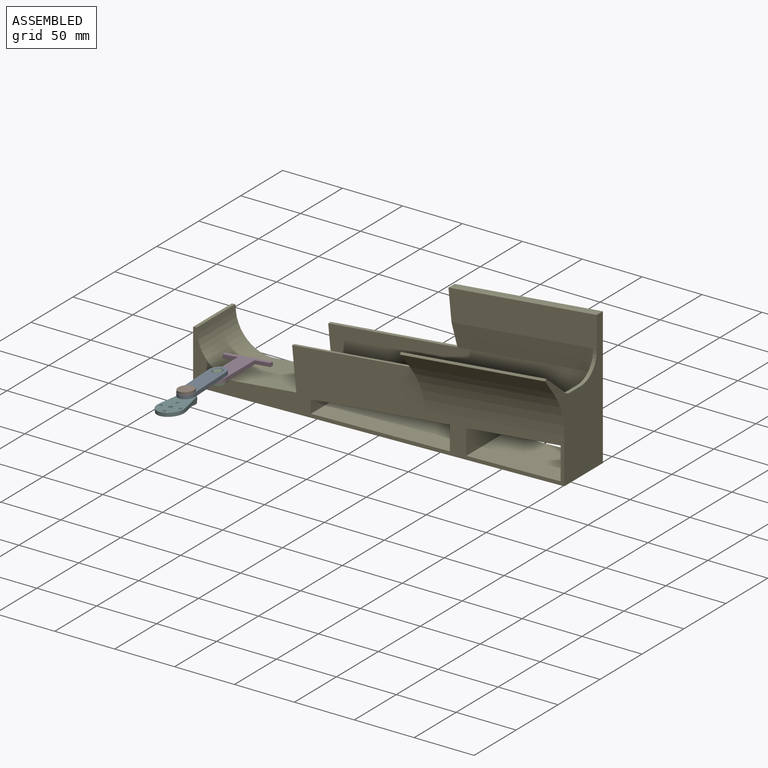
[diagram: assembled view]
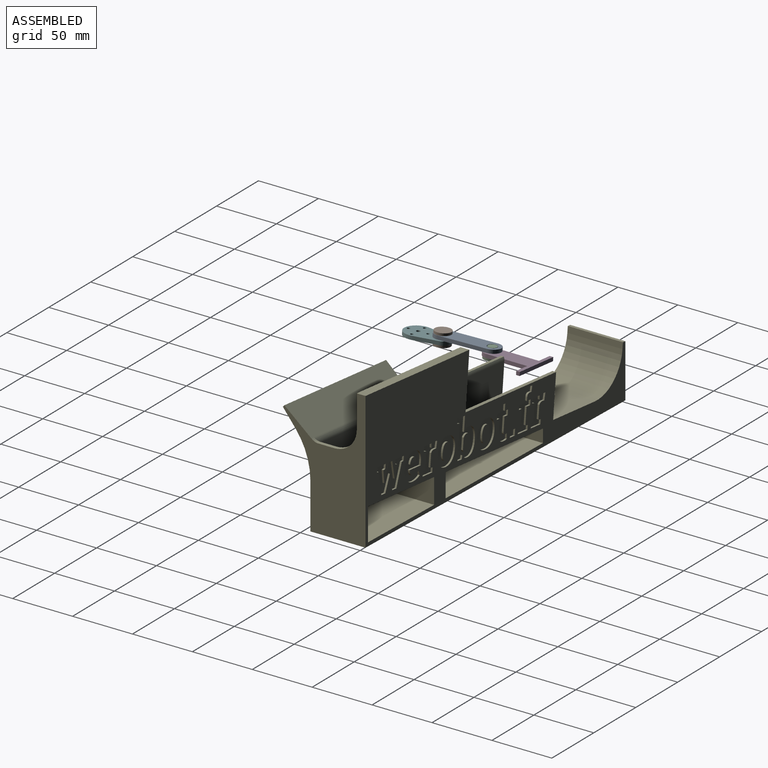
[diagram: assembled view, second angle]
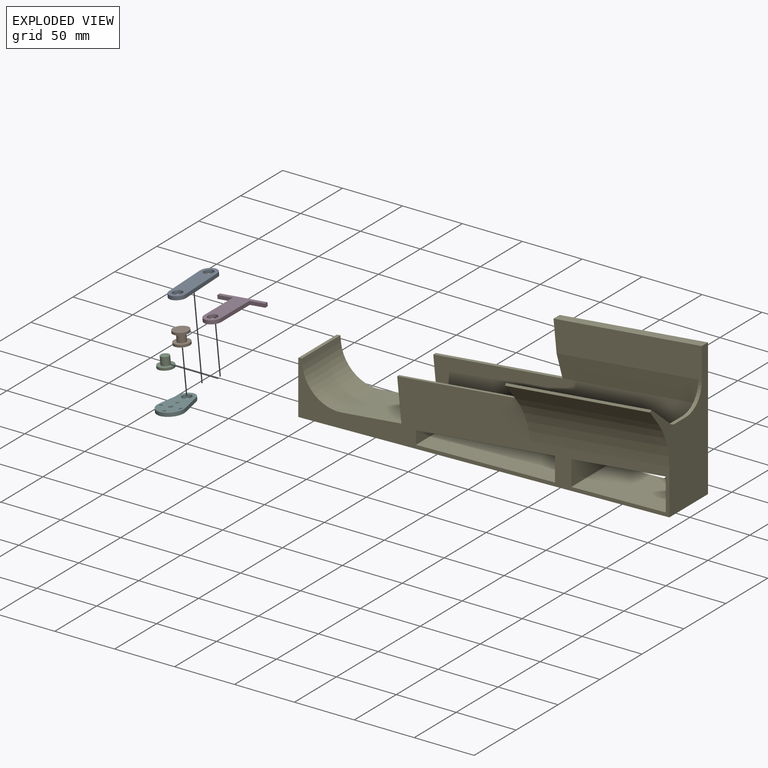
[diagram: exploded view]
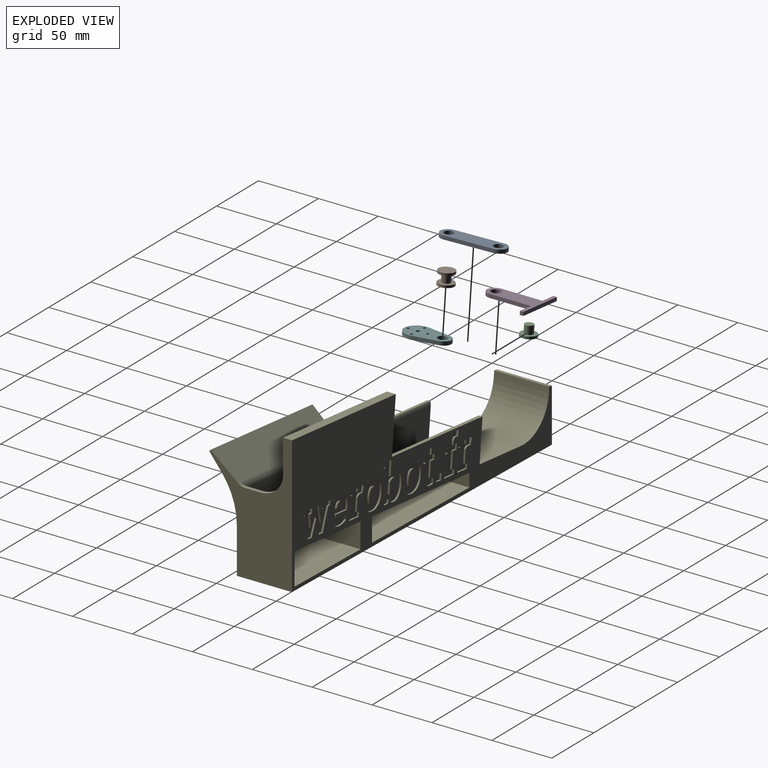
[diagram: exploded view, second angle]
ASSEMBLY  parts=6 mates=3
PART A: 8 faces, bbox 54x14.4x3 mm
  f0: cylinder r=7mm len=14mm, axis (0,0,-1), area 66mm2, adj f1,f4,f6,f7
  f1: plane 40x3mm, normal (0.01,1,0), area 120mm2, adj f0,f2,f6,f7
  f2: cylinder r=7mm len=14mm, axis (0,0,-1), area 66mm2, adj f1,f4,f6,f7
  f3: cylinder r=4mm len=8mm, axis (0,0,-1), area 75.4mm2, adj f6,f7
  f4: plane 40x3mm, normal (-0.01,-1,0), area 120mm2, adj f0,f2,f6,f7
  f5: cylinder r=4mm len=8mm, axis (0,0,-1), area 75.4mm2, adj f6,f7
  f6: plane 54x14.42mm, normal (0,0,1), area 613.4mm2, adj f0,f1,f2,f3,f4,f5
  f7: plane 54x14.42mm, normal (0,0,-1), area 613.4mm2, adj f0,f1,f2,f3,f4,f5
PART B: 7 faces, bbox 13.2x13.2x10.8 mm
  f0: cylinder r=3.6mm len=7.2mm, axis (0,0,-1), area 153.8mm2, adj f3,f6
  f1: cylinder r=6.6mm len=13.2mm, axis (0,0,1), area 82.9mm2, adj f2,f3
  f2: plane 13.2x13.2mm, normal (0,0,-1), area 136.8mm2, adj f1
  f3: plane 13.2x13.2mm, normal (0,0,1), area 96.1mm2, adj f0,f1
  f4: cylinder r=6.6mm len=13.2mm, axis (0,0,-1), area 82.9mm2, adj f5,f6
  f5: plane 13.2x13.2mm, normal (0,0,1), area 136.8mm2, adj f4
  f6: plane 13.2x13.2mm, normal (0,0,-1), area 96.1mm2, adj f0,f4
PART C: 5 faces, bbox 13.2x13.2x8.8 mm
  f0: cylinder r=3.6mm len=7.2mm, axis (0,0,-1), area 153.8mm2, adj f1,f4
  f1: plane 7.2x7.2mm, normal (0,0,1), area 40.7mm2, adj f0
  f2: cylinder r=6.6mm len=13.2mm, axis (0,0,1), area 82.9mm2, adj f3,f4
  f3: plane 13.2x13.2mm, normal (0,0,-1), area 136.8mm2, adj f2
  f4: plane 13.2x13.2mm, normal (0,0,1), area 96.1mm2, adj f0,f2
PART D: 12 faces, bbox 44x40x3 mm
  f0: plane 34x3mm, normal (0,-1,0), area 102mm2, adj f1,f8,f10,f11
  f1: plane 13x3mm, normal (-1,0,0), area 39mm2, adj f0,f2,f10,f11
  f2: plane 3x3mm, normal (0,-1,0), area 9mm2, adj f1,f3,f10,f11
  f3: plane 40x3mm, normal (1,0,0), area 120mm2, adj f2,f4,f10,f11
  f4: plane 3x3mm, normal (0,1,0), area 9mm2, adj f3,f5,f10,f11
  f5: plane 13x3mm, normal (-1,0,0), area 39mm2, adj f4,f6,f10,f11
  f6: plane 33.96x3mm, normal (0,1,0), area 101.9mm2, adj f5,f7,f10,f11
  f7: plane 3x0.04mm, normal (-0.01,-1,0), area 0.1mm2, adj f6,f8
  f8: cylinder r=7mm len=14mm, axis (0,0,1), area 66.2mm2, adj f0,f7,f10,f11
  f9: cylinder r=4mm len=8mm, axis (0,0,1), area 75.4mm2, adj f10,f11
  f10: plane 44x40mm, normal (0,0,-1), area 622.7mm2, adj f0,f1,f2,f3,f4,f5,f6,f8
  f11: plane 44x40mm, normal (0,0,1), area 622.7mm2, adj f0,f1,f2,f3,f4,f5,f6,f8
PART E: 266 faces, bbox 314.5x70.2x122.7 mm
  f0: plane 309.75x121.49mm, normal (0,1,0), area 13976.5mm2, adj f4,f9,f12,f13,f14,f21,f22,f23
  f1: plane 309.75x63.58mm, normal (0,-1,0), area 7643.6mm2, adj f4,f9,f10,f12,f18,f23,f24,f25
  f2: plane 116.21x11.62mm, normal (0.1,0,-1), area 7.8mm2, adj f3,f7,f11,f22
  f3: plane 118.21x31.86mm, normal (0.02,-0.98,-0.21), area 2425mm2, adj f2,f7,f20,f22
  f4: plane 271.62x47.18mm, normal (-0.1,0,1), area 10984.4mm2, adj f0,f1,f7,f8,f11,f13,f25,f32
  f5: cylinder r=5.8mm len=1.06mm, axis (1,0,0.1), area 0mm2, adj f17,f24,f26
  f6: plane 13.6x3.01mm, normal (0,0,1), area 40.2mm2, adj f7,f24,f26,f42
  f7: plane 55.46x42.18mm, normal (-1,0,0), area 1525.7mm2, adj f2,f3,f4,f6,f8,f11,f17,f19
  f8: plane 223.89x54.52mm, normal (0,1,0), area 7214.3mm2, adj f4,f7,f19,f25
  f9: plane 46x2.99mm, normal (-0.1,0,1), area 138mm2, adj f0,f1,f12,f40
  f10: plane 107.96x10.8mm, normal (-0.1,0,1), area 252.8mm2, adj f1,f18,f19,f25
  f11: plane 224.16x57.24mm, normal (0,-1,0), area 7823.6mm2, adj f2,f4,f7,f13,f14
  f12: plane 46x4.98mm, normal (1,0,0.1), area 230mm2, adj f0,f1,f9,f39
  f13: plane 34.83x3.48mm, normal (-1,0,-0.1), area 105mm2, adj f0,f4,f11,f14
  f14: plane 107.96x10.8mm, normal (-0.1,0,1), area 325.5mm2, adj f0,f11,f13,f22
  f15: plane 121.12x25.4mm, normal (0.06,-0.79,-0.61), area 2054.9mm2, adj f16,f18,f24,f51
  f16: plane 121.27x13.6mm, normal (-0.06,-0.77,0.64), area 234.9mm2, adj f15,f17,f18,f24
  f17: plane 121.29x31.07mm, normal (-0.08,0.64,0.76), area 3578.3mm2, adj f5,f7,f16,f18,f19,f24,f26
  f18: plane 50.76x25.31mm, normal (-1,0,-0.1), area 218.7mm2, adj f1,f10,f15,f16,f17,f19,f51
  f19: cylinder r=5.8mm len=224.78mm, axis (1,0,0.1), area 896.7mm2, adj f7,f8,f10,f17,f18,f25
  f20: plane 123.76x37.87mm, normal (0,-1,0), area 3159.1mm2, adj f3,f7,f21,f22,f24,f42
  f21: plane 123.76x12.38mm, normal (-0.1,0,1), area 913.8mm2, adj f0,f20,f22,f24
  f22: plane 45.53x7.35mm, normal (-1,0,-0.1), area 293.1mm2, adj f0,f2,f3,f14,f20,f21
  f23: plane 305.97x46mm, normal (0.02,0,-1), area 14028.1mm2, adj f0,f1,f24,f27,f28,f29,f30,f41
  f24: plane 114.69x69.2mm, normal (1,0,0), area 3772.3mm2, adj f0,f1,f5,f6,f15,f16,f17,f20
  f25: plane 34.83x3.48mm, normal (-1,0,-0.1), area 104.4mm2, adj f1,f4,f8,f10,f19
  f26: bspline ~5.76x4.29mm, area 17.9mm2, adj f5,f6,f7,f17,f24
  f27: cylinder r=2mm len=13.97mm, axis (0.02,0,-1), area 174.4mm2, adj f23,f33
  f28: cylinder r=2mm len=13.97mm, axis (0.02,0,-1), area 174.4mm2, adj f23,f37
  f29: cylinder r=2mm len=13.97mm, axis (0.02,0,-1), area 174.4mm2, adj f23,f35
  f30: cylinder r=2mm len=13.97mm, axis (0.02,0,-1), area 174.4mm2, adj f23,f31
  f31: plane 7.7x7.7mm, normal (-0.02,0,1), area 34mm2, adj f30,f32
  f32: cylinder r=3.85mm len=7.76mm, axis (-0.02,0,1), area 70.1mm2, adj f4,f31
  f33: plane 7.7x7.7mm, normal (-0.02,0,1), area 34mm2, adj f27,f34
  f34: cylinder r=3.85mm len=7.76mm, axis (-0.02,0,1), area 70.1mm2, adj f4,f33
  f35: plane 7.7x7.7mm, normal (-0.02,0,1), area 34mm2, adj f29,f36
  f36: cylinder r=3.85mm len=13.07mm, axis (-0.02,0,1), area 312mm2, adj f4,f35
  f37: plane 7.7x7.7mm, normal (-0.02,0,1), area 34mm2, adj f28,f38
  f38: cylinder r=3.85mm len=13.07mm, axis (-0.02,0,1), area 312mm2, adj f4,f37
  f39: cylinder r=30mm len=46mm, axis (0,1,0), area 2167.7mm2, adj f0,f1,f4,f12
  f40: plane 46x44.53mm, normal (-1,0,0), area 2048.3mm2, adj f0,f1,f9,f41
  f41: plane 46x3.78mm, normal (0,0,-1), area 173.9mm2, adj f0,f1,f23,f40
  f42: cylinder r=18.83mm len=18.83mm, axis (-1,0,0), area 88.7mm2, adj f6,f7,f20,f24
  f43: plane 46x21mm, normal (1,0,0), area 965.8mm2, adj f0,f1,f44,f46
  f44: plane 78.77x46mm, normal (-0.02,0,1), area 3624.2mm2, adj f0,f1,f43,f45
  f45: plane 46x27.07mm, normal (-1,0,0), area 1245.1mm2, adj f0,f1,f44,f46
  f46: plane 78.77x46mm, normal (0.1,0,-1), area 3641.3mm2, adj f0,f1,f43,f45
  f47: plane 46x11mm, normal (1,0,0), area 505.8mm2, adj f0,f1,f48,f50
  f48: plane 116.05x46mm, normal (-0.02,0,1), area 5339.8mm2, adj f0,f1,f47,f49
  f49: plane 46x19.94mm, normal (-1,0,0), area 917.3mm2, adj f0,f1,f48,f50
  f50: plane 116.05x46mm, normal (0.1,0,-1), area 5365mm2, adj f0,f1,f47,f49
  f51: cylinder r=58.6mm len=123.4mm, axis (-1,0,-0.1), area 4624.2mm2, adj f1,f15,f18,f24
  f52: plane 2.88x1.5mm, normal (-0.11,0,-0.99), area 4.4mm2, adj f0,f53,f70,f71
  f53: plane 3.53x1.5mm, normal (-1,0,-0.1), area 5.3mm2, adj f0,f52,f54,f71
  f54: plane 11.54x1.5mm, normal (-0.1,0,1), area 17.4mm2, adj f0,f53,f55,f71
  f55: plane 3.53x1.5mm, normal (1,0,0.1), area 5.3mm2, adj f0,f54,f56,f71
  f56: plane 2.76x1.5mm, normal (0.31,0,-0.95), area 4.4mm2, adj f0,f55,f57,f71
  f57: plane 10.61x1.5mm, normal (1,0,0.1), area 16mm2, adj f0,f56,f58,f71
  f58: extruded ~1.5x1.43mm, area 3mm2, adj f0,f57,f59,f71
  f59: extruded ~2.19x1.5mm, area 3.4mm2, adj f0,f58,f60,f71
  f60: plane 2.42x1.5mm, normal (-0.12,0,0.99), area 3.7mm2, adj f0,f59,f61,f71
  f61: plane 5.3x1.5mm, normal (0.98,0,0.21), area 8.1mm2, adj f0,f60,f62,f71
  f62: extruded ~1.5x0.84mm, area 1.3mm2, adj f0,f61,f63,f71
  f63: extruded ~1.5x0.97mm, area 1.5mm2, adj f0,f62,f64,f71
  f64: extruded ~2.89x1.5mm, area 4.5mm2, adj f0,f63,f65,f71
  f65: extruded ~2.44x2.24mm, area 5mm2, adj f0,f64,f66,f71
  f66: plane 3.21x1.5mm, normal (1,0,0.02), area 4.8mm2, adj f0,f65,f67,f71
  f67: plane 8.62x1.5mm, normal (0.1,0,-1), area 13mm2, adj f0,f66,f68,f71
  f68: plane 3.55x1.5mm, normal (-1,0,-0.1), area 5.4mm2, adj f0,f67,f69,f71
  f69: plane 3.07x1.5mm, normal (-0.29,0,0.96), area 4.8mm2, adj f0,f68,f70,f71
  f70: plane 13.54x1.5mm, normal (-1,0,-0.1), area 20.4mm2, adj f0,f52,f69,f71
  f71: plane 23.02x17.4mm, normal (0,1,0), area 195.1mm2, adj f52,f53,f54,f55,f56,f57,f58,f59
  f72: extruded ~2.71x1.5mm, area 4.5mm2, adj f73,f95,f96,f262
  f73: extruded ~2.54x1.5mm, area 4.5mm2, adj f72,f74,f96,f262
  f74: extruded ~3.09x1.5mm, area 4.8mm2, adj f73,f75,f96,f262
  f75: plane 1.5x0.52mm, normal (-1,0,-0.1), area 0.8mm2, adj f74,f76,f96,f262
  f76: plane 7.22x1.5mm, normal (0.1,0,-1), area 10.9mm2, adj f75,f77,f96,f262
  f77: plane 1.5x0.11mm, normal (0.9,0,-0.44), area 0.2mm2, adj f76,f95,f96,f262
  f78: extruded ~7.25x3.78mm, area 12.6mm2, adj f0,f79,f94,f96
  f79: extruded ~4.86x1.5mm, area 7.3mm2, adj f0,f78,f80,f96
  f80: extruded ~3.68x1.5mm, area 6mm2, adj f0,f79,f81,f96
  f81: plane 3.8x1.5mm, normal (0.95,0,-0.31), area 6mm2, adj f0,f80,f82,f96
  f82: extruded ~2.95x1.5mm, area 4.7mm2, adj f0,f81,f83,f96
  f83: extruded ~3.29x1.5mm, area 5mm2, adj f0,f82,f84,f96
  f84: extruded ~3.34x1.74mm, area 5.8mm2, adj f0,f83,f85,f96
  f85: extruded ~3.7x1.5mm, area 5.9mm2, adj f0,f84,f86,f96
  f86: plane 1.5x0.12mm, normal (0.92,0,0.39), area 0.2mm2, adj f0,f85,f87,f96
  f87: plane 13.04x1.5mm, normal (-0.1,0,1), area 19.7mm2, adj f0,f86,f88,f96
  f88: plane 3.21x1.5mm, normal (1,0,0.1), area 4.8mm2, adj f0,f87,f89,f96
  f89: extruded ~7.45x1.8mm, area 11.7mm2, adj f0,f88,f90,f96
  f90: extruded ~6.6x3.35mm, area 11.4mm2, adj f0,f89,f91,f96
  f91: extruded ~7.49x2.48mm, area 12.2mm2, adj f0,f90,f92,f96
  f92: extruded ~7.74x3.48mm, area 13mm2, adj f0,f91,f93,f96
  f93: plane 1.5x0.81mm, normal (-1,0,-0.1), area 1.2mm2, adj f0,f92,f94,f96
  f94: extruded ~7.97x2.13mm, area 12.7mm2, adj f0,f78,f93,f96
  f95: extruded ~3.17x1.5mm, area 5.3mm2, adj f72,f77,f96,f262
  f96: plane 23.26x20.07mm, normal (0,1,0), area 282.9mm2, adj f72,f73,f74,f75,f76,f77,f78,f79
  f97: extruded ~4.9x1.5mm, area 7.5mm2, adj f98,f116,f117,f263
  f98: plane 1.5x0.43mm, normal (1,0,0.1), area 0.6mm2, adj f97,f99,f117,f263
  f99: extruded ~4.64x1.52mm, area 7.4mm2, adj f98,f100,f117,f263
  f100: extruded ~3.54x1.53mm, area 6.1mm2, adj f99,f101,f117,f263
  f101: extruded ~3.18x2.17mm, area 6.1mm2, adj f100,f102,f117,f263
  f102: extruded ~4.85x1.5mm, area 7.4mm2, adj f101,f103,f117,f263
  f103: plane 1.5x0.43mm, normal (-1,0,-0.1), area 0.6mm2, adj f102,f104,f117,f263
  f104: extruded ~4.68x1.54mm, area 7.5mm2, adj f103,f105,f117,f263
  f105: extruded ~3.52x1.51mm, area 6mm2, adj f104,f116,f117,f263
  f106: extruded ~7.73x3.54mm, area 13mm2, adj f0,f107,f115,f117
  f107: plane 1.5x0.43mm, normal (-1,0,-0.1), area 0.6mm2, adj f0,f106,f108,f117
  f108: extruded ~8.29x2.02mm, area 13.1mm2, adj f0,f107,f109,f117
  f109: extruded ~7.29x3.86mm, area 12.8mm2, adj f0,f108,f110,f117
  f110: extruded ~7.85x2.42mm, area 12.7mm2, adj f0,f109,f111,f117
  f111: extruded ~7.75x3.54mm, area 13.1mm2, adj f0,f110,f112,f117
  f112: plane 1.5x0.43mm, normal (1,0,0.1), area 0.6mm2, adj f0,f111,f113,f117
  f113: extruded ~8.29x2.02mm, area 13.1mm2, adj f0,f112,f114,f117
  f114: extruded ~7.27x3.87mm, area 12.8mm2, adj f0,f113,f115,f117
  f115: extruded ~7.87x2.43mm, area 12.7mm2, adj f0,f106,f114,f117
  f116: extruded ~3.21x2.15mm, area 6.1mm2, adj f97,f105,f117,f263
  f117: plane 23.44x21.4mm, normal (0,1,0), area 283mm2, adj f97,f98,f99,f100,f101,f102,f103,f104
  f118: extruded ~5.14x1.5mm, area 7.8mm2, adj f119,f143,f144,f264
  f119: plane 1.5x0.43mm, normal (-1,0,-0.1), area 0.6mm2, adj f118,f120,f144,f264
  f120: extruded ~4.46x1.5mm, area 7.1mm2, adj f119,f121,f144,f264
  f121: extruded ~3.35x1.5mm, area 5.7mm2, adj f120,f122,f144,f264
  f122: extruded ~2.3x1.5mm, area 3.7mm2, adj f121,f123,f144,f264
  f123: extruded ~1.69x1.5mm, area 3.3mm2, adj f122,f124,f144,f264
  f124: plane 9.22x1.5mm, normal (1,0,0.1), area 13.9mm2, adj f123,f125,f144,f264
  f125: extruded ~1.66x1.5mm, area 3.4mm2, adj f124,f126,f144,f264
  f126: extruded ~2.38x1.5mm, area 3.7mm2, adj f125,f143,f144,f264
  f127: extruded ~7.59x2.96mm, area 12.4mm2, adj f0,f128,f142,f144
  f128: plane 1.5x0.43mm, normal (1,0,0.1), area 0.6mm2, adj f0,f127,f129,f144
  f129: extruded ~8.58x1.5mm, area 13.2mm2, adj f0,f128,f130,f144
  f130: extruded ~6.03x3.77mm, area 11.1mm2, adj f0,f129,f131,f144
  f131: extruded ~3.11x1.5mm, area 4.8mm2, adj f0,f130,f132,f144
  f132: extruded ~2.47x1.79mm, area 4.6mm2, adj f0,f131,f133,f144
  f133: plane 11.97x1.5mm, normal (1,0,0.1), area 18mm2, adj f0,f132,f134,f144
  f134: plane 9x1.5mm, normal (0.1,0,-1), area 13.6mm2, adj f0,f133,f135,f144
  f135: plane 3.55x1.5mm, normal (-1,0,-0.1), area 5.4mm2, adj f0,f134,f136,f144
  f136: plane 3.07x1.5mm, normal (-0.29,0,0.96), area 4.8mm2, adj f0,f135,f137,f144
  f137: plane 27.33x2.73mm, normal (-1,0,-0.1), area 41.2mm2, adj f0,f136,f138,f144
  f138: plane 5.08x1.5mm, normal (-0.1,0,1), area 7.7mm2, adj f0,f137,f139,f144
  f139: plane 2.64x1.5mm, normal (0.97,0,0.25), area 4.1mm2, adj f0,f138,f140,f144
  f140: extruded ~2.55x2.15mm, area 5.1mm2, adj f0,f139,f141,f144
  f141: extruded ~3.25x1.5mm, area 5.2mm2, adj f0,f140,f142,f144
  f142: extruded ~6.59x2.35mm, area 10.9mm2, adj f0,f127,f141,f144
  f143: extruded ~3.01x2.19mm, area 5.9mm2, adj f118,f126,f144,f264
  f144: plane 33.69x21.51mm, normal (0,1,0), area 375.8mm2, adj f118,f119,f120,f121,f122,f123,f124,f125
  f145: plane 2.91x1.5mm, normal (-0.11,0,-0.99), area 4.4mm2, adj f0,f146,f168,f169
  f146: plane 3.53x1.5mm, normal (-1,0,-0.1), area 5.3mm2, adj f0,f145,f147,f169
  f147: plane 11.59x1.5mm, normal (-0.1,0,1), area 17.5mm2, adj f0,f146,f148,f169
  f148: plane 3.53x1.5mm, normal (1,0,0.1), area 5.3mm2, adj f0,f147,f149,f169
  f149: plane 2.79x1.5mm, normal (0.3,0,-0.95), area 4.4mm2, adj f0,f148,f150,f169
  f150: plane 13.56x1.5mm, normal (1,0,0.1), area 20.4mm2, adj f0,f149,f151,f169
  f151: plane 4.34x1.5mm, normal (-0.1,0,1), area 6.5mm2, adj f0,f150,f152,f169
  f152: plane 4.13x1.5mm, normal (1,0,0.1), area 6.2mm2, adj f0,f151,f153,f169
  f153: plane 4.34x1.5mm, normal (0.1,0,-1), area 6.5mm2, adj f0,f152,f154,f169
  f154: plane 2.42x1.5mm, normal (1,0,0.1), area 3.7mm2, adj f0,f153,f155,f169
  f155: extruded ~2.19x1.5mm, area 3.7mm2, adj f0,f154,f156,f169
  f156: extruded ~2.25x1.5mm, area 3.6mm2, adj f0,f155,f157,f169
  f157: extruded ~1.5x1.05mm, area 1.6mm2, adj f0,f156,f158,f169
  f158: extruded ~1.5x0.92mm, area 1.4mm2, adj f0,f157,f159,f169
  f159: plane 4.33x1.5mm, normal (0.98,0,0.21), area 6.6mm2, adj f0,f158,f160,f169
  f160: extruded ~1.68x1.5mm, area 2.6mm2, adj f0,f159,f161,f169
  f161: extruded ~1.51x1.5mm, area 2.3mm2, adj f0,f160,f162,f169
  f162: extruded ~6.15x1.5mm, area 9.7mm2, adj f0,f161,f163,f169
  f163: extruded ~5.45x2.68mm, area 9.4mm2, adj f0,f162,f164,f169
  f164: plane 2.42x1.5mm, normal (-1,0,-0.1), area 3.7mm2, adj f0,f163,f165,f169
  f165: plane 3.26x1.5mm, normal (0.1,0,-1), area 4.9mm2, adj f0,f164,f166,f169
  f166: plane 4.13x1.5mm, normal (-1,0,-0.1), area 6.2mm2, adj f0,f165,f167,f169
  f167: plane 3.26x1.5mm, normal (-0.1,0,1), area 4.9mm2, adj f0,f166,f168,f169
  f168: plane 13.56x1.5mm, normal (-1,0,-0.1), area 20.4mm2, adj f0,f145,f167,f169
  f169: plane 32.28x17.3mm, normal (0,1,0), area 257.8mm2, adj f145,f146,f147,f148,f149,f150,f151,f152
  f170: plane 5.88x1.5mm, normal (-0.1,0,1), area 8.9mm2, adj f0,f171,f173,f174
  f171: plane 5.17x1.5mm, normal (1,0,0.1), area 7.8mm2, adj f0,f170,f172,f174
  f172: plane 5.88x1.5mm, normal (0.1,0,-1), area 8.9mm2, adj f0,f171,f173,f174
  f173: plane 5.17x1.5mm, normal (-1,0,-0.1), area 7.8mm2, adj f0,f170,f172,f174
  f174: plane 6.39x5.75mm, normal (0,1,0), area 30.7mm2, adj f170,f171,f172,f173
  f175: plane 5.35x1.5mm, normal (1,0,0.1), area 8.1mm2, adj f0,f176,f194,f195
  f176: plane 5.88x1.5mm, normal (0.1,0,-1), area 8.9mm2, adj f0,f175,f177,f195
  f177: plane 5.35x1.5mm, normal (-1,0,-0.1), area 8.1mm2, adj f0,f176,f178,f195
  f178: plane 3.2x1.5mm, normal (0.1,0,-1), area 4.8mm2, adj f0,f177,f179,f195
  f179: plane 4.13x1.5mm, normal (-1,0,-0.1), area 6.2mm2, adj f0,f178,f180,f195
  f180: plane 3.2x1.5mm, normal (-0.1,0,1), area 4.8mm2, adj f0,f179,f181,f195
  f181: plane 11.14x1.5mm, normal (-1,0,-0.1), area 16.8mm2, adj f0,f180,f182,f195
  f182: extruded ~5.48x1.5mm, area 8.6mm2, adj f0,f181,f183,f195
  f183: extruded ~4.53x2.15mm, area 7.7mm2, adj f0,f182,f184,f195
  f184: extruded ~2.11x1.5mm, area 3.2mm2, adj f0,f183,f185,f195
  f185: extruded ~2x1.5mm, area 3mm2, adj f0,f184,f186,f195
  f186: plane 4.31x1.5mm, normal (1,0,-0.02), area 6.5mm2, adj f0,f185,f187,f195
  f187: extruded ~1.5x1.04mm, area 1.6mm2, adj f0,f186,f188,f195
  f188: extruded ~1.5x1.06mm, area 1.6mm2, adj f0,f187,f189,f195
  f189: extruded ~1.5x1.36mm, area 2.4mm2, adj f0,f188,f190,f195
  f190: extruded ~1.87x1.5mm, area 2.9mm2, adj f0,f189,f191,f195
  f191: plane 11.12x1.5mm, normal (1,0,0.1), area 16.8mm2, adj f0,f190,f192,f195
  f192: plane 3.84x1.5mm, normal (-0.1,0,1), area 5.8mm2, adj f0,f191,f193,f195
  f193: plane 4.13x1.5mm, normal (1,0,0.1), area 6.2mm2, adj f0,f192,f194,f195
  f194: plane 3.84x1.5mm, normal (0.1,0,-1), area 5.8mm2, adj f0,f175,f193,f195
  f195: plane 28.34x13.33mm, normal (0,1,0), area 206.2mm2, adj f175,f176,f177,f178,f179,f180,f181,f182
  f196: plane 2.88x1.5mm, normal (-0.11,0,-0.99), area 4.4mm2, adj f0,f197,f214,f215
  f197: plane 3.53x1.5mm, normal (-1,0,-0.1), area 5.3mm2, adj f0,f196,f198,f215
  f198: plane 11.54x1.5mm, normal (-0.1,0,1), area 17.4mm2, adj f0,f197,f199,f215
  f199: plane 3.53x1.5mm, normal (1,0,0.1), area 5.3mm2, adj f0,f198,f200,f215
  f200: plane 2.76x1.5mm, normal (0.31,0,-0.95), area 4.4mm2, adj f0,f199,f201,f215
  f201: plane 10.61x1.5mm, normal (1,0,0.1), area 16mm2, adj f0,f200,f202,f215
  f202: extruded ~1.5x1.43mm, area 3mm2, adj f0,f201,f203,f215
  f203: extruded ~2.19x1.5mm, area 3.4mm2, adj f0,f202,f204,f215
  f204: plane 2.42x1.5mm, normal (-0.12,0,0.99), area 3.7mm2, adj f0,f203,f205,f215
  f205: plane 5.3x1.5mm, normal (0.98,0,0.21), area 8.1mm2, adj f0,f204,f206,f215
  f206: extruded ~1.5x0.84mm, area 1.3mm2, adj f0,f205,f207,f215
  f207: extruded ~1.5x0.97mm, area 1.5mm2, adj f0,f206,f208,f215
  f208: extruded ~2.89x1.5mm, area 4.5mm2, adj f0,f207,f209,f215
  f209: extruded ~2.44x2.24mm, area 5mm2, adj f0,f208,f210,f215
  f210: plane 3.21x1.5mm, normal (1,0,0.02), area 4.8mm2, adj f0,f209,f211,f215
  f211: plane 8.62x1.5mm, normal (0.1,0,-1), area 13mm2, adj f0,f210,f212,f215
  f212: plane 3.55x1.5mm, normal (-1,0,-0.1), area 5.4mm2, adj f0,f211,f213,f215
  f213: plane 3.07x1.5mm, normal (-0.29,0,0.96), area 4.8mm2, adj f0,f212,f214,f215
  f214: plane 13.54x1.5mm, normal (-1,0,-0.1), area 20.4mm2, adj f0,f196,f213,f215
  f215: plane 23.02x17.4mm, normal (0,1,0), area 195.1mm2, adj f196,f197,f198,f199,f200,f201,f202,f203
  f216: extruded ~4.9x1.5mm, area 7.5mm2, adj f217,f235,f236,f265
  f217: plane 1.5x0.43mm, normal (1,0,0.1), area 0.6mm2, adj f216,f218,f236,f265
  f218: extruded ~4.64x1.52mm, area 7.4mm2, adj f217,f219,f236,f265
  f219: extruded ~3.54x1.53mm, area 6.1mm2, adj f218,f220,f236,f265
  f220: extruded ~3.18x2.17mm, area 6.1mm2, adj f219,f221,f236,f265
  f221: extruded ~4.85x1.5mm, area 7.4mm2, adj f220,f222,f236,f265
  f222: plane 1.5x0.43mm, normal (-1,0,-0.1), area 0.6mm2, adj f221,f223,f236,f265
  f223: extruded ~4.68x1.54mm, area 7.5mm2, adj f222,f224,f236,f265
  f224: extruded ~3.52x1.51mm, area 6mm2, adj f223,f235,f236,f265
  f225: extruded ~7.73x3.54mm, area 13mm2, adj f0,f226,f234,f236
  f226: plane 1.5x0.43mm, normal (-1,0,-0.1), area 0.6mm2, adj f0,f225,f227,f236
  f227: extruded ~8.29x2.02mm, area 13.1mm2, adj f0,f226,f228,f236
  f228: extruded ~7.29x3.86mm, area 12.8mm2, adj f0,f227,f229,f236
  f229: extruded ~7.85x2.42mm, area 12.7mm2, adj f0,f228,f230,f236
  f230: extruded ~7.75x3.54mm, area 13.1mm2, adj f0,f229,f231,f236
  f231: plane 1.5x0.43mm, normal (1,0,0.1), area 0.6mm2, adj f0,f230,f232,f236
  f232: extruded ~8.29x2.02mm, area 13.1mm2, adj f0,f231,f233,f236
  f233: extruded ~7.27x3.87mm, area 12.8mm2, adj f0,f232,f234,f236
  f234: extruded ~7.87x2.43mm, area 12.7mm2, adj f0,f225,f233,f236
  f235: extruded ~3.21x2.15mm, area 6.1mm2, adj f216,f224,f236,f265
  f236: plane 23.44x21.4mm, normal (0,1,0), area 283mm2, adj f216,f217,f218,f219,f220,f221,f222,f223
  f237: plane 2.23x1.5mm, normal (0.03,0,1), area 3.3mm2, adj f0,f238,f260,f261
  f238: plane 3.55x1.5mm, normal (1,0,0.1), area 5.4mm2, adj f0,f237,f239,f261
  f239: plane 9.89x1.5mm, normal (0.1,0,-1), area 14.9mm2, adj f0,f238,f240,f261
  f240: plane 3.55x1.5mm, normal (-1,0,-0.1), area 5.4mm2, adj f0,f239,f241,f261
  f241: plane 2.3x1.5mm, normal (-0.29,0,0.96), area 3.6mm2, adj f0,f240,f242,f261
  f242: plane 9.81x3.04mm, normal (-0.96,0,-0.3), area 15.4mm2, adj f0,f241,f243,f261
  f243: plane 1.5x0.12mm, normal (0.1,0,-1), area 0.2mm2, adj f0,f242,f244,f261
  f244: plane 14.44x2.72mm, normal (0.98,0,-0.18), area 22mm2, adj f0,f243,f245,f261
  f245: plane 3.95x1.5mm, normal (0.1,0,-1), area 6mm2, adj f0,f244,f246,f261
  f246: plane 13.57x5.48mm, normal (-0.93,0,-0.37), area 22mm2, adj f0,f245,f247,f261
  f247: plane 1.5x0.12mm, normal (0.1,0,-1), area 0.2mm2, adj f0,f246,f248,f261
  f248: plane 10.2x1.5mm, normal (0.99,0,-0.1), area 15.4mm2, adj f0,f247,f249,f261
  f249: plane 2.36x1.5mm, normal (0.09,0,1), area 3.6mm2, adj f0,f248,f250,f261
  f250: plane 3.55x1.5mm, normal (1,0,0.1), area 5.4mm2, adj f0,f249,f251,f261
  f251: plane 9.89x1.5mm, normal (0.1,0,-1), area 14.9mm2, adj f0,f250,f252,f261
  f252: plane 3.55x1.5mm, normal (-1,0,-0.1), area 5.4mm2, adj f0,f251,f253,f261
  f253: plane 2.17x1.5mm, normal (-0.22,0,0.97), area 3.3mm2, adj f0,f252,f254,f261
  f254: plane 18.46x2.78mm, normal (-0.99,0,0.15), area 28mm2, adj f0,f253,f255,f261
  f255: plane 4.9x1.5mm, normal (-0.1,0,1), area 7.4mm2, adj f0,f254,f256,f261
  f256: plane 12.6x5.36mm, normal (0.92,0,0.39), area 20.5mm2, adj f0,f255,f257,f261
  f257: plane 1.5x0.12mm, normal (-0.1,0,1), area 0.2mm2, adj f0,f256,f258,f261
  f258: plane 13.41x2.76mm, normal (-0.98,0,0.2), area 20.5mm2, adj f0,f257,f259,f261
  f259: plane 4.93x1.5mm, normal (-0.1,0,1), area 7.4mm2, adj f0,f258,f260,f261
  f260: plane 17.55x6.36mm, normal (0.94,0,0.34), area 28mm2, adj f0,f237,f259,f261
  f261: plane 31.96x24.32mm, normal (0,1,0), area 397.6mm2, adj f237,f238,f239,f240,f241,f242,f243,f244
  f262: plane 7.47x5.13mm, normal (0,1,0), area 27.7mm2, adj f72,f73,f74,f75,f76,f77,f95
  f263: plane 14.03x9.32mm, normal (0,1,0), area 101mm2, adj f97,f98,f99,f100,f101,f102,f103,f104
  f264: plane 13.8x8.65mm, normal (0,1,0), area 95.3mm2, adj f118,f119,f120,f121,f122,f123,f124,f125
  f265: plane 14.03x9.32mm, normal (0,1,0), area 101mm2, adj f216,f217,f218,f219,f220,f221,f222,f223
PART F: 12 faces, bbox 38x22x3 mm
  f0: plane 19.16x4.12mm, normal (0.21,0.98,0), area 58.8mm2, adj f1,f8,f10,f11
  f1: cylinder r=11mm len=22mm, axis (0,0,1), area 117mm2, adj f0,f2,f10,f11
  f2: plane 19.24x3.72mm, normal (0.19,-0.98,0), area 58.8mm2, adj f1,f8,f10,f11
  f3: cylinder r=1.25mm len=3mm, axis (0,0,1), area 23.6mm2, adj f10,f11
  f4: cylinder r=1.25mm len=3mm, axis (0,0,1), area 23.6mm2, adj f10,f11
  f5: cylinder r=1.6mm len=3.2mm, axis (0,0,1), area 30.2mm2, adj f10,f11
  f6: cylinder r=1.25mm len=3mm, axis (0,0,1), area 23.6mm2, adj f10,f11
  f7: cylinder r=4mm len=8mm, axis (0,0,1), area 75.4mm2, adj f10,f11
  f8: cylinder r=7mm len=13.72mm, axis (0,0,1), area 57.5mm2, adj f0,f2,f10,f11
  f9: cylinder r=1.25mm len=3mm, axis (0,0,1), area 23.6mm2, adj f10,f11
  f10: plane 38x22mm, normal (0,0,-1), area 556.3mm2, adj f0,f1,f2,f3,f4,f5,f6,f7
  f11: plane 38x22mm, normal (0,0,1), area 556.3mm2, adj f0,f1,f2,f3,f4,f5,f6,f7
PLACE A rot(axis=(-0.05,-0.05,1),93.7deg) t=(3.93,-24.08,-1.22)mm
PLACE B rot(axis=(0,-1,0),5.7deg) t=(-16.97,-3.89,-3.51)mm
PLACE C rot(axis=(0,-1,0),5.7deg) t=(-58.82,36.48,-7.69)mm
PLACE D rot(axis=(-0.05,-0.05,1),90.1deg) t=(0.27,-24.15,-1.98)mm
PLACE E t=(-36.72,-161.12,-27.69)mm fixed
PLACE F rot(axis=(-0.05,-0.05,1),92.2deg) t=(3.47,-24.1,-1.67)mm
MATE revolute B.f0 <-> F.f7  axis (-0.1,0,1) through (3.29,-4.1,-5.1)mm
MATE revolute D.f8 <-> C.f0  axis (0.1,0,-1) through (1.24,35.84,-5.31)mm
MATE revolute B.f0 <-> A.f2  axis (0.1,0,-1) through (2.61,-4.1,1.67)mm
